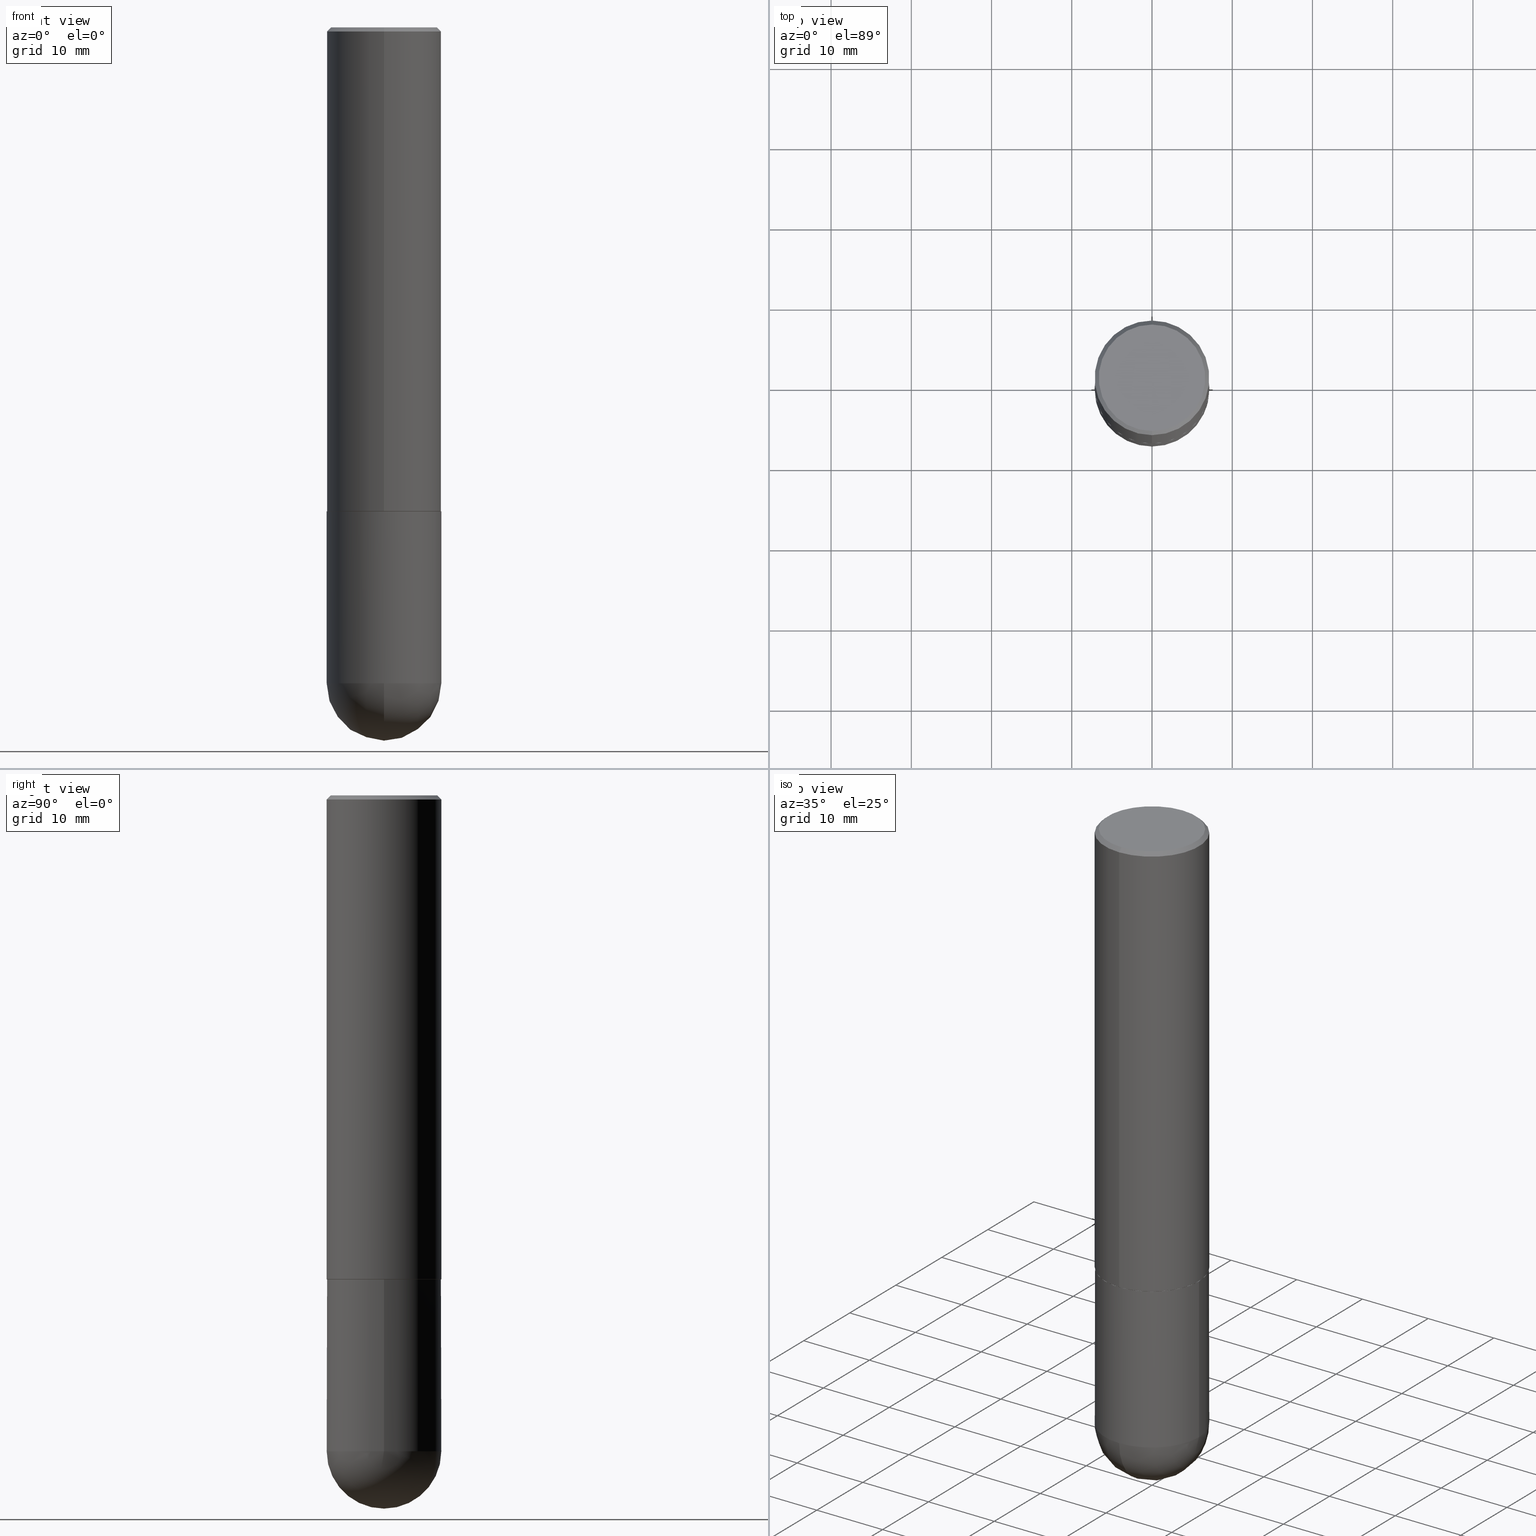
[diagram: canonical four-view strip — front | top / right | iso, engineering-drawing reading convention]
A machine part, canonical four-view strip (front | top / right | iso — engineering-drawing reading convention). The complete STEP part file that produces these views, byte-faithful:
ISO-10303-21;
HEADER;
FILE_DESCRIPTION (( 'STEP AP203' ),
    '1' );
FILE_NAME ('30566.STEP',
    '2024-02-21T16:40:18',
    ( '' ),
    ( '' ),
    'SwSTEP 2.0',
    'SolidWorks 2023',
    '' );
FILE_SCHEMA (( 'CONFIG_CONTROL_DESIGN' ));
ENDSEC;

DATA;
#1 = PERSON_AND_ORGANIZATION_ROLE ( 'creator' ) ;
#2 = CARTESIAN_POINT ( 'NONE',  ( 1.998401444325282167E-15, 0.2812500000000001110, -9.819798812686895501E-16 ) ) ;
#3 = EDGE_CURVE ( 'NONE', #22, #112, #256, .T. ) ;
#4 = CARTESIAN_POINT ( 'NONE',  ( -1.956975290421518122E-15, -0.2802500000000083258, -2.374999999999998668 ) ) ;
#5 = EDGE_CURVE ( 'NONE', #404, #340, #375, .T. ) ;
#6 = DIRECTION ( 'NONE',  ( 2.445466932345140310E-29, -3.491484022288672597E-15, -1.000000000000000000 ) ) ;
#7 = CC_DESIGN_PERSON_AND_ORGANIZATION_ASSIGNMENT ( #219, #280, ( #190 ) ) ;
#8 = CIRCLE ( 'NONE', #305, 0.2612499999999998712 ) ;
#9 = AXIS2_PLACEMENT_3D ( 'NONE', #44, #387, #258 ) ;
#10 = LINE ( 'NONE', #225, #230 ) ;
#11 = FACE_OUTER_BOUND ( 'NONE', #20, .T. ) ;
#12 = AXIS2_PLACEMENT_3D ( 'NONE', #382, #92, #224 ) ;
#13 = AXIS2_PLACEMENT_3D ( 'NONE', #359, #51, #406 ) ;
#14 = EDGE_LOOP ( 'NONE', ( #297, #274, #179, #370, #148 ) ) ;
#15 =( CONVERSION_BASED_UNIT ( 'INCH', #233 ) LENGTH_UNIT ( ) NAMED_UNIT ( #191 ) );
#16 = EDGE_CURVE ( 'NONE', #57, #115, #314, .T. ) ;
#17 = ORIENTED_EDGE ( 'NONE', *, *, #216, .F. ) ;
#18 = DIRECTION ( 'NONE',  ( -2.445466932345140310E-29, 3.491484022288672597E-15, 1.000000000000000000 ) ) ;
#19 = CALENDAR_DATE ( 2024, 21, 2 ) ;
#20 = EDGE_LOOP ( 'NONE', ( #184, #263 ) ) ;
#21 = DIRECTION ( 'NONE',  ( -6.982962677686265922E-15, -1.000000000000000000, 3.491484022288672992E-15 ) ) ;
#22 = VERTEX_POINT ( 'NONE', #66 ) ;
#23 = AXIS2_PLACEMENT_3D ( 'NONE', #364, #277, #269 ) ;
#24 = CYLINDRICAL_SURFACE ( 'NONE', #13, 0.2812500000000000555 ) ;
#25 = CYLINDRICAL_SURFACE ( 'NONE', #200, 0.2812500000000001110 ) ;
#26 = EDGE_CURVE ( 'NONE', #115, #241, #134, .T. ) ;
#27 = DIRECTION ( 'NONE',  ( -2.445466932345140310E-29, 3.491484022288672597E-15, 1.000000000000000000 ) ) ;
#28 = APPROVAL_ROLE ( '' ) ;
#29 = FACE_OUTER_BOUND ( 'NONE', #273, .T. ) ;
#30 = APPROVAL ( #317, 'UNSPECIFIED' ) ;
#31 = COORDINATED_UNIVERSAL_TIME_OFFSET ( 5, 0, .BEHIND. ) ;
#32 = DIRECTION ( 'NONE',  ( 1.000000000000000000, -6.982962677686268288E-15, 0.000000000000000000 ) ) ;
#33 = CLOSED_SHELL ( 'NONE', ( #125, #96, #167, #252, #45, #302, #363, #343 ) ) ;
#34 = VECTOR ( 'NONE', #186, 39.37007874015748143 ) ;
#35 = ADVANCED_FACE ( 'NONE', ( #374 ), #157, .T. ) ;
#36 = APPROVAL_DATE_TIME ( #408, #30 ) ;
#37 = CARTESIAN_POINT ( 'NONE',  ( -1.956975290421518122E-15, -0.2802500000000083258, -2.374999999999998668 ) ) ;
#38 = CARTESIAN_POINT ( 'NONE',  ( -1.998401444325206042E-15, -0.2812500000000116573, -3.218749999999998668 ) ) ;
#39 = PERSON_AND_ORGANIZATION ( #67, #362 ) ;
#40 = CARTESIAN_POINT ( 'NONE',  ( 5.807983964319707676E-29, -8.292274552935595299E-15, -2.374999999999999556 ) ) ;
#41 = APPROVAL_PERSON_ORGANIZATION ( #391, #379, #75 ) ;
#42 = CARTESIAN_POINT ( 'NONE',  ( 4.890933864690296280E-31, -6.982968044577367529E-17, -0.02000000000000006287 ) ) ;
#43 = CC_DESIGN_PERSON_AND_ORGANIZATION_ASSIGNMENT ( #39, #326, ( #334 ) ) ;
#44 = CARTESIAN_POINT ( 'NONE',  ( 7.540232941994521053E-29, -1.171238792754142562E-14, -3.218749999999999556 ) ) ;
#45 = ADVANCED_FACE ( 'NONE', ( #29 ), #25, .T. ) ;
#46 = ORIENTED_EDGE ( 'NONE', *, *, #78, .T. ) ;
#47 = EDGE_CURVE ( 'NONE', #112, #340, #284, .T. ) ;
#48 = PLANE ( 'NONE',  #183 ) ;
#49 = AXIS2_PLACEMENT_3D ( 'NONE', #310, #18, #142 ) ;
#50 = ORIENTED_EDGE ( 'NONE', *, *, #207, .F. ) ;
#51 = DIRECTION ( 'NONE',  ( -2.445468806185136597E-29, 3.491481338843145583E-15, 1.000000000000000000 ) ) ;
#52 = DATE_AND_TIME ( #77, #392 ) ;
#53 = ORIENTED_EDGE ( 'NONE', *, *, #102, .F. ) ;
#54 = CARTESIAN_POINT ( 'NONE',  ( -1.963958253099263301E-15, -0.2812500000000001110, 9.819798812686895501E-16 ) ) ;
#55 = EDGE_LOOP ( 'NONE', ( #335, #232, #88, #308 ) ) ;
#56 = DIRECTION ( 'NONE',  ( -2.445466932345139750E-29, 3.491484022288672992E-15, 1.000000000000000000 ) ) ;
#57 = VERTEX_POINT ( 'NONE', #193 ) ;
#58 =( GEOMETRIC_REPRESENTATION_CONTEXT ( 3 ) GLOBAL_UNCERTAINTY_ASSIGNED_CONTEXT ( ( #285 ) ) GLOBAL_UNIT_ASSIGNED_CONTEXT ( ( #15, #304, #290 ) ) REPRESENTATION_CONTEXT ( 'NONE', 'WORKASPACE' ) );
#59 = DIRECTION ( 'NONE',  ( 1.000000000000000000, -6.982962677686269866E-15, 0.000000000000000000 ) ) ;
#60 = DATE_AND_TIME ( #344, #410 ) ;
#61 = CARTESIAN_POINT ( 'NONE',  ( 1.963958253099262512E-15, 0.2812499999999998890, -0.02000000000000104472 ) ) ;
#62 = CARTESIAN_POINT ( 'NONE',  ( 8.240046819675677659E-29, -1.267714545847805119E-14, -3.500000000000000000 ) ) ;
#63 = DIRECTION ( 'NONE',  ( -2.445466932345140310E-29, 3.491484022288672597E-15, 1.000000000000000000 ) ) ;
#64 = LOCAL_TIME ( 11, 40, 18.00000000000000000, #202 ) ;
#65 = CARTESIAN_POINT ( 'NONE',  ( 0.000000000000000000, 0.000000000000000000, 0.000000000000000000 ) ) ;
#66 = CARTESIAN_POINT ( 'NONE',  ( -1.963958253099205714E-15, -0.2812500000000085487, -2.373999999999998334 ) ) ;
#67 = PERSON ( 'UNSPECIFIED', 'UNSPECIFIED', 'UNSPECIFIED', ('UNSPECIFIED'), ('UNSPECIFIED'), ('UNSPECIFIED') ) ;
#68 = DIRECTION ( 'NONE',  ( -2.445466932345140310E-29, 3.491484022288672597E-15, 1.000000000000000000 ) ) ;
#69 = CONICAL_SURFACE ( 'NONE', #401, 0.2802499999999999991, 0.7853981633973970977 ) ;
#70 = DIRECTION ( 'NONE',  ( 6.982962677686266711E-15, 1.000000000000000000, -3.490694658571003593E-15 ) ) ;
#71 = CARTESIAN_POINT ( 'NONE',  ( 0.2812500000000000000, -1.025622643285173184E-14, -2.374999999999999556 ) ) ;
#72 = MANIFOLD_SOLID_BREP ( 'Body-Move/Copy2[2]', #33 ) ;
#73 = CC_DESIGN_DATE_AND_TIME_ASSIGNMENT ( #144, #327, ( #289 ) ) ;
#74 = AXIS2_PLACEMENT_3D ( 'NONE', #42, #6, #70 ) ;
#75 = APPROVAL_ROLE ( '' ) ;
#76 = VERTEX_POINT ( 'NONE', #38 ) ;
#77 = CALENDAR_DATE ( 2024, 21, 2 ) ;
#78 = EDGE_CURVE ( 'NONE', #361, #328, #8, .T. ) ;
#79 = VERTEX_POINT ( 'NONE', #4 ) ;
#80 = ORIENTED_EDGE ( 'NONE', *, *, #216, .T. ) ;
#81 = CARTESIAN_POINT ( 'NONE',  ( -0.2812500000000000555, 1.998401444325282167E-15, -1.383450494134192269E-29 ) ) ;
#82 = AXIS2_PLACEMENT_3D ( 'NONE', #99, #349, #222 ) ;
#83 = AXIS2_PLACEMENT_3D ( 'NONE', #108, #166, #254 ) ;
#84 = PERSON_AND_ORGANIZATION ( #67, #362 ) ;
#85 = VERTEX_POINT ( 'NONE', #62 ) ;
#86 = CARTESIAN_POINT ( 'NONE',  ( -1.860910081895526737E-15, -0.2612499999999998712, 9.889841266948666649E-16 ) ) ;
#87 = ORIENTED_EDGE ( 'NONE', *, *, #110, .F. ) ;
#88 = ORIENTED_EDGE ( 'NONE', *, *, #5, .T. ) ;
#89 = EDGE_CURVE ( 'NONE', #85, #115, #236, .T. ) ;
#90 = ORIENTED_EDGE ( 'NONE', *, *, #259, .T. ) ;
#91 = DIRECTION ( 'NONE',  ( 6.982962677686265922E-15, 1.000000000000000000, -3.885294924322502955E-15 ) ) ;
#92 = DIRECTION ( 'NONE',  ( -2.445468806185136597E-29, 3.491481338843145583E-15, 1.000000000000000000 ) ) ;
#93 = CC_DESIGN_APPROVAL ( #379, ( #190 ) ) ;
#94 = DIRECTION ( 'NONE',  ( -2.445466932345140310E-29, 3.491484022288672597E-15, 1.000000000000000000 ) ) ;
#95 = DIRECTION ( 'NONE',  ( 1.000000000000000000, -6.982962677686268288E-15, 0.000000000000000000 ) ) ;
#96 = ADVANCED_FACE ( 'NONE', ( #409 ), #253, .T. ) ;
#97 = DATE_TIME_ROLE ( 'classification_date' ) ;
#98 = DIRECTION ( 'NONE',  ( 4.937700262164541731E-15, 0.7071067811865442421, -0.7071067811865507924 ) ) ;
#99 = CARTESIAN_POINT ( 'NONE',  ( 4.890933864690296280E-31, -6.982968044577367529E-17, -0.02000000000000006287 ) ) ;
#100 = VECTOR ( 'NONE', #127, 39.37007874015748143 ) ;
#101 = DIRECTION ( 'NONE',  ( -4.937700262164294818E-15, -0.7071067811865088260, 0.7071067811865862085 ) ) ;
#102 = EDGE_CURVE ( 'NONE', #79, #22, #346, .T. ) ;
#103 = SPHERICAL_SURFACE ( 'NONE', #9, 0.2812500000000003331 ) ;
#104 = CLOSED_SHELL ( 'NONE', ( #337, #373, #198, #178, #35 ) ) ;
#105 = CIRCLE ( 'NONE', #49, 0.2812500000000002220 ) ;
#106 = EDGE_CURVE ( 'NONE', #241, #76, #294, .T. ) ;
#107 = CARTESIAN_POINT ( 'NONE',  ( 1.994848730646540039E-15, 0.2802499999999917280, -2.375000000000000888 ) ) ;
#108 = CARTESIAN_POINT ( 'NONE',  ( 5.807983964319707676E-29, -8.292274552935595299E-15, -2.374999999999999556 ) ) ;
#109 = CIRCLE ( 'NONE', #306, 0.2812500000000000000 ) ;
#110 = EDGE_CURVE ( 'NONE', #76, #57, #351, .T. ) ;
#111 = AXIS2_PLACEMENT_3D ( 'NONE', #40, #68, #196 ) ;
#112 = VERTEX_POINT ( 'NONE', #218 ) ;
#113 = ORIENTED_EDGE ( 'NONE', *, *, #171, .F. ) ;
#114 = DIRECTION ( 'NONE',  ( -2.445468806185136877E-29, 3.491481338843145188E-15, 1.000000000000000000 ) ) ;
#115 = VERTEX_POINT ( 'NONE', #407 ) ;
#116 = CARTESIAN_POINT ( 'NONE',  ( 0.2812500000000000555, -1.963958253099262907E-15, 1.371424718192607012E-29 ) ) ;
#117 = LOCAL_TIME ( 11, 40, 18.00000000000000000, #381 ) ;
#118 = EDGE_LOOP ( 'NONE', ( #206, #80, #403, #238 ) ) ;
#119 = CARTESIAN_POINT ( 'NONE',  ( -1.929515061873242463E-15, -0.2812500000000000555, -0.01999999999999908101 ) ) ;
#120 = ORIENTED_EDGE ( 'NONE', *, *, #5, .F. ) ;
#121 = ORIENTED_EDGE ( 'NONE', *, *, #3, .T. ) ;
#122 = CARTESIAN_POINT ( 'NONE',  ( 5.807988414689698296E-29, -8.292268179752468540E-15, -2.374999999999999556 ) ) ;
#123 = CC_DESIGN_PERSON_AND_ORGANIZATION_ASSIGNMENT ( #170, #261, ( #289 ) ) ;
#124 = FACE_OUTER_BOUND ( 'NONE', #143, .T. ) ;
#125 = ADVANCED_FACE ( 'NONE', ( #124 ), #355, .T. ) ;
#126 = AXIS2_PLACEMENT_3D ( 'NONE', #250, #278, #131 ) ;
#127 = DIRECTION ( 'NONE',  ( -2.445466932345140310E-29, 3.491484022288672992E-15, 1.000000000000000000 ) ) ;
#128 = AXIS2_PLACEMENT_3D ( 'NONE', #341, #27, #235 ) ;
#129 = CARTESIAN_POINT ( 'NONE',  ( 0.000000000000000000, 0.000000000000000000, 0.000000000000000000 ) ) ;
#130 = DIRECTION ( 'NONE',  ( 6.982962677686266711E-15, 1.000000000000000000, -3.490694658571003593E-15 ) ) ;
#131 = DIRECTION ( 'NONE',  ( 6.982962677686265133E-15, 1.000000000000000000, 0.000000000000000000 ) ) ;
#132 = VECTOR ( 'NONE', #98, 39.37007874015748143 ) ;
#133 = VECTOR ( 'NONE', #244, 39.37007874015748143 ) ;
#134 = CIRCLE ( 'NONE', #188, 0.2812500000000000555 ) ;
#135 = FACE_OUTER_BOUND ( 'NONE', #266, .T. ) ;
#136 = ORIENTED_EDGE ( 'NONE', *, *, #47, .F. ) ;
#137 = AXIS2_PLACEMENT_3D ( 'NONE', #175, #295, #251 ) ;
#138 = AXIS2_PLACEMENT_3D ( 'NONE', #412, #63, #243 ) ;
#139 = ORIENTED_EDGE ( 'NONE', *, *, #145, .T. ) ;
#140 = COORDINATED_UNIVERSAL_TIME_OFFSET ( 5, 0, .BEHIND. ) ;
#141 = ORIENTED_EDGE ( 'NONE', *, *, #259, .F. ) ;
#142 = DIRECTION ( 'NONE',  ( -6.982962677686265133E-15, -1.000000000000000000, 3.885294924322504533E-15 ) ) ;
#143 = EDGE_LOOP ( 'NONE', ( #146, #367, #303, #53 ) ) ;
#144 = DATE_AND_TIME ( #19, #332 ) ;
#145 = EDGE_CURVE ( 'NONE', #328, #340, #217, .T. ) ;
#146 = ORIENTED_EDGE ( 'NONE', *, *, #171, .T. ) ;
#147 = FACE_OUTER_BOUND ( 'NONE', #118, .T. ) ;
#148 = ORIENTED_EDGE ( 'NONE', *, *, #16, .T. ) ;
#149 = AXIS2_PLACEMENT_3D ( 'NONE', #283, #153, #95 ) ;
#150 = AXIS2_PLACEMENT_3D ( 'NONE', #279, #271, #402 ) ;
#151 = ORIENTED_EDGE ( 'NONE', *, *, #312, .T. ) ;
#152 = CARTESIAN_POINT ( 'NONE',  ( 5.807983964319707676E-29, -8.292274552935595299E-15, -2.374999999999999556 ) ) ;
#153 = DIRECTION ( 'NONE',  ( -2.445468806185136597E-29, 3.491481338843145583E-15, 1.000000000000000000 ) ) ;
#154 = FACE_OUTER_BOUND ( 'NONE', #210, .T. ) ;
#155 = EDGE_CURVE ( 'NONE', #361, #404, #189, .T. ) ;
#156 = PERSON_AND_ORGANIZATION ( #67, #362 ) ;
#157 = CYLINDRICAL_SURFACE ( 'NONE', #245, 0.2812500000000000555 ) ;
#158 = PERSON_AND_ORGANIZATION ( #67, #362 ) ;
#159 = DIRECTION ( 'NONE',  ( -6.982962677686265133E-15, -1.000000000000000000, 3.491484022288672597E-15 ) ) ;
#160 = CIRCLE ( 'NONE', #128, 0.2812499999999999445 ) ;
#161 = CARTESIAN_POINT ( 'NONE',  ( 7.871352719908407300E-29, -1.123820555940137375E-14, -3.218749999999999556 ) ) ;
#162 = DIRECTION ( 'NONE',  ( 1.000000000000000000, 0.000000000000000000, 0.000000000000000000 ) ) ;
#163 = DIRECTION ( 'NONE',  ( -6.982962677686266711E-15, -1.000000000000000000, 3.491484022288672597E-15 ) ) ;
#164 = DESIGN_CONTEXT ( 'detailed design', #386, 'design' ) ;
#165 = APPROVAL_PERSON_ORGANIZATION ( #84, #168, #301 ) ;
#166 = DIRECTION ( 'NONE',  ( -2.445466932345140310E-29, 3.491484022288672597E-15, 1.000000000000000000 ) ) ;
#167 = ADVANCED_FACE ( 'NONE', ( #311 ), #223, .T. ) ;
#168 = APPROVAL ( #292, 'UNSPECIFIED' ) ;
#169 = AXIS2_PLACEMENT_3D ( 'NONE', #228, #350, #322 ) ;
#170 = PERSON_AND_ORGANIZATION ( #67, #362 ) ;
#171 = EDGE_CURVE ( 'NONE', #79, #209, #257, .T. ) ;
#172 = ORIENTED_EDGE ( 'NONE', *, *, #291, .T. ) ;
#173 = PLANE ( 'NONE',  #324 ) ;
#174 = AXIS2_PLACEMENT_3D ( 'NONE', #267, #336, #91 ) ;
#175 = CARTESIAN_POINT ( 'NONE',  ( 5.805538497387361922E-29, -8.288783068913306238E-15, -2.373999999999999222 ) ) ;
#176 = APPLICATION_CONTEXT ( 'configuration controlled 3d designs of mechanical parts and assemblies' ) ;
#177 = DIRECTION ( 'NONE',  ( -2.445468806185136597E-29, 3.491481338843145583E-15, 1.000000000000000000 ) ) ;
#178 = ADVANCED_FACE ( 'NONE', ( #11 ), #227, .F. ) ;
#179 = ORIENTED_EDGE ( 'NONE', *, *, #388, .F. ) ;
#180 = DIRECTION ( 'NONE',  ( -2.445466932345140310E-29, 3.491484022288672992E-15, 1.000000000000000000 ) ) ;
#181 = ORIENTED_EDGE ( 'NONE', *, *, #106, .T. ) ;
#182 = CARTESIAN_POINT ( 'NONE',  ( 5.807983964319707676E-29, -8.292274552935595299E-15, -2.374999999999999556 ) ) ;
#183 = AXIS2_PLACEMENT_3D ( 'NONE', #372, #296, #185 ) ;
#184 = ORIENTED_EDGE ( 'NONE', *, *, #388, .T. ) ;
#185 = DIRECTION ( 'NONE',  ( 6.982962677686265922E-15, 1.000000000000000000, -3.491484022288672992E-15 ) ) ;
#186 = DIRECTION ( 'NONE',  ( -4.851104656540957964E-15, -0.7071067811865491270, -0.7071067811865459074 ) ) ;
#187 = CARTESIAN_POINT ( 'NONE',  ( 4.890933864690296280E-31, -6.982968044577367529E-17, -0.02000000000000006287 ) ) ;
#188 = AXIS2_PLACEMENT_3D ( 'NONE', #161, #318, #348 ) ;
#189 = LINE ( 'NONE', #220, #34 ) ;
#190 = PRODUCT_DEFINITION_FORMATION_WITH_SPECIFIED_SOURCE ( 'ANY', '', #334, .NOT_KNOWN. ) ;
#191 = DIMENSIONAL_EXPONENTS ( 1.000000000000000000, 0.000000000000000000, 0.000000000000000000, 0.000000000000000000, 0.000000000000000000, 0.000000000000000000, 0.000000000000000000 ) ;
#192 = DATE_AND_TIME ( #378, #64 ) ;
#193 = CARTESIAN_POINT ( 'NONE',  ( 0.2812500000000000555, -1.172919512267618602E-14, -3.218749999999999556 ) ) ;
#194 = CC_DESIGN_PERSON_AND_ORGANIZATION_ASSIGNMENT ( #215, #1, ( #190 ) ) ;
#195 = DIRECTION ( 'NONE',  ( -6.982962677686266711E-15, -1.000000000000000000, 3.491484022288672597E-15 ) ) ;
#196 = DIRECTION ( 'NONE',  ( -6.982962677686265922E-15, -1.000000000000000000, 3.899158599342391639E-15 ) ) ;
#197 = CONICAL_SURFACE ( 'NONE', #74, 0.2812499999999999445, 0.7853981633974471688 ) ;
#198 = ADVANCED_FACE ( 'NONE', ( #135 ), #103, .T. ) ;
#199 = CARTESIAN_POINT ( 'NONE',  ( -0.2812500000000000555, -7.766835425251639371E-15, -3.218749999999999556 ) ) ;
#200 = AXIS2_PLACEMENT_3D ( 'NONE', #65, #281, #163 ) ;
#201 = VECTOR ( 'NONE', #180, 39.37007874015748143 ) ;
#202 = COORDINATED_UNIVERSAL_TIME_OFFSET ( 5, 0, .BEHIND. ) ;
#203 = CC_DESIGN_PERSON_AND_ORGANIZATION_ASSIGNMENT ( #156, #249, ( #352 ) ) ;
#204 = ORIENTED_EDGE ( 'NONE', *, *, #16, .F. ) ;
#205 = APPROVAL_DATE_TIME ( #52, #168 ) ;
#206 = ORIENTED_EDGE ( 'NONE', *, *, #89, .F. ) ;
#207 = EDGE_CURVE ( 'NONE', #209, #112, #10, .T. ) ;
#208 = SPHERICAL_SURFACE ( 'NONE', #174, 0.2812500000000003331 ) ;
#209 = VERTEX_POINT ( 'NONE', #107 ) ;
#210 = EDGE_LOOP ( 'NONE', ( #113, #231 ) ) ;
#211 = VERTEX_POINT ( 'NONE', #71 ) ;
#212 = SECURITY_CLASSIFICATION_LEVEL ( 'unclassified' ) ;
#213 = ORIENTED_EDGE ( 'NONE', *, *, #102, .T. ) ;
#214 = LINE ( 'NONE', #54, #201 ) ;
#215 = PERSON_AND_ORGANIZATION ( #67, #362 ) ;
#216 = EDGE_CURVE ( 'NONE', #85, #76, #226, .T. ) ;
#217 = LINE ( 'NONE', #61, #132 ) ;
#218 = CARTESIAN_POINT ( 'NONE',  ( 1.998401444325312144E-15, 0.2812499999999919509, -2.374000000000000554 ) ) ;
#219 = PERSON_AND_ORGANIZATION ( #67, #362 ) ;
#220 = CARTESIAN_POINT ( 'NONE',  ( -1.929515061873242463E-15, -0.2812500000000000555, -0.01999999999999908101 ) ) ;
#221 = EDGE_CURVE ( 'NONE', #209, #79, #389, .T. ) ;
#222 = DIRECTION ( 'NONE',  ( -6.982962677686266711E-15, -1.000000000000000000, 3.490694658571003593E-15 ) ) ;
#223 = CONICAL_SURFACE ( 'NONE', #377, 0.2812499999999999445, 0.7853981633974471688 ) ;
#224 = DIRECTION ( 'NONE',  ( 1.000000000000000000, -6.982962677686268288E-15, 0.000000000000000000 ) ) ;
#225 = CARTESIAN_POINT ( 'NONE',  ( 1.991296016967738351E-15, 0.2802499999999917280, -2.375000000000000888 ) ) ;
#226 = CIRCLE ( 'NONE', #272, 0.2812500000000003331 ) ;
#227 = PLANE ( 'NONE',  #169 ) ;
#228 = CARTESIAN_POINT ( 'NONE',  ( 1.963958253099320494E-15, 0.2812499999999917288, -2.375000000000000444 ) ) ;
#229 = APPROVAL_STATUS ( 'not_yet_approved' ) ;
#230 = VECTOR ( 'NONE', #390, 39.37007874015748854 ) ;
#231 = ORIENTED_EDGE ( 'NONE', *, *, #221, .F. ) ;
#232 = ORIENTED_EDGE ( 'NONE', *, *, #155, .T. ) ;
#233 = LENGTH_MEASURE_WITH_UNIT ( LENGTH_MEASURE( 0.02539999999999999897 ), #369 );
#234 = EDGE_LOOP ( 'NONE', ( #121, #357, #120, #393 ) ) ;
#235 = DIRECTION ( 'NONE',  ( -6.982962677686266711E-15, -1.000000000000000000, 3.490694658571003593E-15 ) ) ;
#236 = CIRCLE ( 'NONE', #126, 0.2812500000000003331 ) ;
#237 = AXIS2_PLACEMENT_3D ( 'NONE', #275, #405, #162 ) ;
#238 = ORIENTED_EDGE ( 'NONE', *, *, #26, .F. ) ;
#239 = LINE ( 'NONE', #81, #384 ) ;
#240 = ORIENTED_EDGE ( 'NONE', *, *, #276, .F. ) ;
#241 = VERTEX_POINT ( 'NONE', #199 ) ;
#242 = FACE_OUTER_BOUND ( 'NONE', #358, .T. ) ;
#243 = DIRECTION ( 'NONE',  ( -6.982962677686265922E-15, -1.000000000000000000, 3.899158599342391639E-15 ) ) ;
#244 = DIRECTION ( 'NONE',  ( -2.445468806185136877E-29, 3.491481338843145188E-15, 1.000000000000000000 ) ) ;
#245 = AXIS2_PLACEMENT_3D ( 'NONE', #129, #342, #247 ) ;
#246 = CC_DESIGN_APPROVAL ( #168, ( #289 ) ) ;
#247 = DIRECTION ( 'NONE',  ( 1.000000000000000000, -6.982962677686266711E-15, 4.876176775795935232E-29 ) ) ;
#248 = MECHANICAL_CONTEXT ( 'NONE', #176, 'mechanical' ) ;
#249 = PERSON_AND_ORGANIZATION_ROLE ( 'classification_officer' ) ;
#250 = CARTESIAN_POINT ( 'NONE',  ( 7.540232941994521053E-29, -1.171238792754142562E-14, -3.218749999999999556 ) ) ;
#251 = DIRECTION ( 'NONE',  ( -6.982962677686265133E-15, -1.000000000000000000, 3.885294924322504533E-15 ) ) ;
#252 = ADVANCED_FACE ( 'NONE', ( #320 ), #197, .T. ) ;
#253 = CYLINDRICAL_SURFACE ( 'NONE', #287, 0.2812500000000001110 ) ;
#254 = DIRECTION ( 'NONE',  ( -6.982962677686265922E-15, -1.000000000000000000, 3.899158599342391639E-15 ) ) ;
#255 = PRODUCT_RELATED_PRODUCT_CATEGORY ( 'detail', '', ( #334 ) ) ;
#256 = CIRCLE ( 'NONE', #137, 0.2812500000000002220 ) ;
#257 = CIRCLE ( 'NONE', #83, 0.2802499999999999991 ) ;
#258 = DIRECTION ( 'NONE',  ( 6.982962677686265922E-15, 1.000000000000000000, -3.885294924322502955E-15 ) ) ;
#259 = EDGE_CURVE ( 'NONE', #112, #22, #105, .T. ) ;
#260 = CARTESIAN_POINT ( 'NONE',  ( 7.540232941994521053E-29, -1.171238792754142562E-14, -3.218749999999999556 ) ) ;
#261 = PERSON_AND_ORGANIZATION_ROLE ( 'creator' ) ;
#262 = ORIENTED_EDGE ( 'NONE', *, *, #265, .F. ) ;
#263 = ORIENTED_EDGE ( 'NONE', *, *, #265, .T. ) ;
#264 = CIRCLE ( 'NONE', #23, 0.2612499999999998712 ) ;
#265 = EDGE_CURVE ( 'NONE', #397, #211, #109, .T. ) ;
#266 = EDGE_LOOP ( 'NONE', ( #17, #394, #204, #87 ) ) ;
#267 = CARTESIAN_POINT ( 'NONE',  ( 7.540232941994521053E-29, -1.171238792754142562E-14, -3.218749999999999556 ) ) ;
#268 = EDGE_LOOP ( 'NONE', ( #331, #240, #139, #151 ) ) ;
#269 = DIRECTION ( 'NONE',  ( -6.982962677686265133E-15, -1.000000000000000000, 3.491484022288672597E-15 ) ) ;
#270 = ORIENTED_EDGE ( 'NONE', *, *, #286, .F. ) ;
#271 = DIRECTION ( 'NONE',  ( -2.445468806185136597E-29, 3.491481338843145583E-15, 1.000000000000000000 ) ) ;
#272 = AXIS2_PLACEMENT_3D ( 'NONE', #260, #354, #319 ) ;
#273 = EDGE_LOOP ( 'NONE', ( #136, #90, #299, #371 ) ) ;
#274 = ORIENTED_EDGE ( 'NONE', *, *, #286, .T. ) ;
#275 = CARTESIAN_POINT ( 'NONE',  ( 0.000000000000000000, 0.000000000000000000, 0.000000000000000000 ) ) ;
#276 = EDGE_CURVE ( 'NONE', #328, #361, #264, .T. ) ;
#277 = DIRECTION ( 'NONE',  ( -2.445466932345140310E-29, 3.491484022288672597E-15, 1.000000000000000000 ) ) ;
#278 = DIRECTION ( 'NONE',  ( 1.000000000000000000, -6.982962677686265922E-15, 4.883557194083112340E-29 ) ) ;
#279 = CARTESIAN_POINT ( 'NONE',  ( 5.807988414689698296E-29, -8.292268179752468540E-15, -2.374999999999999556 ) ) ;
#280 = PERSON_AND_ORGANIZATION_ROLE ( 'design_supplier' ) ;
#281 = DIRECTION ( 'NONE',  ( -2.445466932345140310E-29, 3.491484022288672597E-15, 1.000000000000000000 ) ) ;
#282 = DIRECTION ( 'NONE',  ( -2.445466932345140310E-29, 3.491484022288672597E-15, 1.000000000000000000 ) ) ;
#283 = CARTESIAN_POINT ( 'NONE',  ( 7.871352719908407300E-29, -1.123820555940137375E-14, -3.218749999999999556 ) ) ;
#284 = LINE ( 'NONE', #2, #100 ) ;
#285 = UNCERTAINTY_MEASURE_WITH_UNIT (LENGTH_MEASURE( 1.000000000000000082E-05 ), #15, 'distance_accuracy_value', 'NONE');
#286 = EDGE_CURVE ( 'NONE', #241, #397, #239, .T. ) ;
#287 = AXIS2_PLACEMENT_3D ( 'NONE', #380, #385, #195 ) ;
#288 = APPROVAL_PERSON_ORGANIZATION ( #158, #30, #28 ) ;
#289 = PRODUCT_DEFINITION ( 'UNKNOWN', '', #190, #164 ) ;
#290 =( NAMED_UNIT ( * ) SI_UNIT ( $, .STERADIAN. ) SOLID_ANGLE_UNIT ( ) );
#291 = EDGE_CURVE ( 'NONE', #57, #211, #330, .T. ) ;
#292 = APPROVAL_STATUS ( 'not_yet_approved' ) ;
#293 = EDGE_LOOP ( 'NONE', ( #270, #181, #399, #172, #262 ) ) ;
#294 = CIRCLE ( 'NONE', #12, 0.2812500000000000555 ) ;
#295 = DIRECTION ( 'NONE',  ( -2.445466932345140310E-29, 3.491484022288672597E-15, 1.000000000000000000 ) ) ;
#296 = DIRECTION ( 'NONE',  ( 2.445466932345139750E-29, -3.491484022288672992E-15, -1.000000000000000000 ) ) ;
#297 = ORIENTED_EDGE ( 'NONE', *, *, #26, .T. ) ;
#298 = CARTESIAN_POINT ( 'NONE',  ( -0.2812500000000000000, -7.766835425251637793E-15, -2.374999999999999556 ) ) ;
#299 = ORIENTED_EDGE ( 'NONE', *, *, #396, .T. ) ;
#300 = PRODUCT_DEFINITION_SHAPE ( 'NONE', 'NONE',  #289 ) ;
#301 = APPROVAL_ROLE ( '' ) ;
#302 = ADVANCED_FACE ( 'NONE', ( #398 ), #69, .T. ) ;
#303 = ORIENTED_EDGE ( 'NONE', *, *, #3, .F. ) ;
#304 =( NAMED_UNIT ( * ) PLANE_ANGLE_UNIT ( ) SI_UNIT ( $, .RADIAN. ) );
#305 = AXIS2_PLACEMENT_3D ( 'NONE', #345, #282, #159 ) ;
#306 = AXIS2_PLACEMENT_3D ( 'NONE', #122, #177, #59 ) ;
#307 = CALENDAR_DATE ( 2024, 21, 2 ) ;
#308 = ORIENTED_EDGE ( 'NONE', *, *, #145, .F. ) ;
#309 = FACE_OUTER_BOUND ( 'NONE', #14, .T. ) ;
#310 = CARTESIAN_POINT ( 'NONE',  ( 5.805538497387361922E-29, -8.288783068913306238E-15, -2.373999999999999222 ) ) ;
#311 = FACE_OUTER_BOUND ( 'NONE', #55, .T. ) ;
#312 = EDGE_CURVE ( 'NONE', #340, #404, #160, .T. ) ;
#313 = DIRECTION ( 'NONE',  ( 2.445466932345140310E-29, -3.491484022288672597E-15, -1.000000000000000000 ) ) ;
#314 = CIRCLE ( 'NONE', #347, 0.2812500000000000555 ) ;
#315 = CIRCLE ( 'NONE', #150, 0.2812500000000000000 ) ;
#316 = DIRECTION ( 'NONE',  ( -2.445468806185136597E-29, 3.491481338843145583E-15, 1.000000000000000000 ) ) ;
#317 = APPROVAL_STATUS ( 'not_yet_approved' ) ;
#318 = DIRECTION ( 'NONE',  ( -2.445468806185136597E-29, 3.491481338843145583E-15, 1.000000000000000000 ) ) ;
#319 = DIRECTION ( 'NONE',  ( -7.105427357601001859E-15, -1.000000000000000000, 0.000000000000000000 ) ) ;
#320 = FACE_OUTER_BOUND ( 'NONE', #268, .T. ) ;
#321 = CC_DESIGN_APPROVAL ( #30, ( #352 ) ) ;
#322 = DIRECTION ( 'NONE',  ( -1.000000000000000000, 6.982962677686265922E-15, -4.876176775795935793E-29 ) ) ;
#323 = VECTOR ( 'NONE', #101, 39.37007874015748143 ) ;
#324 = AXIS2_PLACEMENT_3D ( 'NONE', #152, #56, #21 ) ;
#325 = CC_DESIGN_SECURITY_CLASSIFICATION ( #352, ( #190 ) ) ;
#326 = PERSON_AND_ORGANIZATION_ROLE ( 'design_owner' ) ;
#327 = DATE_TIME_ROLE ( 'creation_date' ) ;
#328 = VERTEX_POINT ( 'NONE', #395 ) ;
#329 = CC_DESIGN_DATE_AND_TIME_ASSIGNMENT ( #60, #97, ( #352 ) ) ;
#330 = LINE ( 'NONE', #116, #133 ) ;
#331 = ORIENTED_EDGE ( 'NONE', *, *, #155, .F. ) ;
#332 = LOCAL_TIME ( 11, 40, 18.00000000000000000, #140 ) ;
#333 = DIRECTION ( 'NONE',  ( -6.982962677686265922E-15, -1.000000000000000000, 3.899158599342391639E-15 ) ) ;
#334 = PRODUCT ( '30566', '30566', '', ( #248 ) ) ;
#335 = ORIENTED_EDGE ( 'NONE', *, *, #78, .F. ) ;
#336 = DIRECTION ( 'NONE',  ( -1.000000000000000000, 6.982962677686265922E-15, -4.883557194083112901E-29 ) ) ;
#337 = ADVANCED_FACE ( 'NONE', ( #309 ), #24, .T. ) ;
#338 = ORIENTED_EDGE ( 'NONE', *, *, #276, .T. ) ;
#339 = SHAPE_DEFINITION_REPRESENTATION ( #300, #366 ) ;
#340 = VERTEX_POINT ( 'NONE', #376 ) ;
#341 = CARTESIAN_POINT ( 'NONE',  ( 4.890933864690296280E-31, -6.982968044577367529E-17, -0.02000000000000006287 ) ) ;
#342 = DIRECTION ( 'NONE',  ( -2.445468806185136597E-29, 3.491481338843145583E-15, 1.000000000000000000 ) ) ;
#343 = ADVANCED_FACE ( 'NONE', ( #242 ), #48, .F. ) ;
#344 = CALENDAR_DATE ( 2024, 21, 2 ) ;
#345 = CARTESIAN_POINT ( 'NONE',  ( -1.878948250021147159E-45, 2.682644245516303250E-31, 7.683392587195133242E-17 ) ) ;
#346 = LINE ( 'NONE', #37, #323 ) ;
#347 = AXIS2_PLACEMENT_3D ( 'NONE', #383, #316, #32 ) ;
#348 = DIRECTION ( 'NONE',  ( 1.000000000000000000, -6.982962677686268288E-15, 0.000000000000000000 ) ) ;
#349 = DIRECTION ( 'NONE',  ( -2.445466932345140310E-29, 3.491484022288672597E-15, 1.000000000000000000 ) ) ;
#350 = DIRECTION ( 'NONE',  ( 2.438088387897960049E-29, -3.491481338843145188E-15, -1.000000000000000000 ) ) ;
#351 = CIRCLE ( 'NONE', #149, 0.2812500000000000555 ) ;
#352 = SECURITY_CLASSIFICATION ( '', '', #212 ) ;
#353 = MANIFOLD_SOLID_BREP ( 'Body-Move/Copy2[1]', #104 ) ;
#354 = DIRECTION ( 'NONE',  ( -1.000000000000000000, 7.105427357601001070E-15, -4.926315508542082329E-29 ) ) ;
#355 = CONICAL_SURFACE ( 'NONE', #138, 0.2802499999999999991, 0.7853981633973970977 ) ;
#356 = COORDINATED_UNIVERSAL_TIME_OFFSET ( 5, 0, .BEHIND. ) ;
#357 = ORIENTED_EDGE ( 'NONE', *, *, #47, .T. ) ;
#358 = EDGE_LOOP ( 'NONE', ( #338, #46 ) ) ;
#359 = CARTESIAN_POINT ( 'NONE',  ( 0.000000000000000000, 0.000000000000000000, 0.000000000000000000 ) ) ;
#360 = APPLICATION_PROTOCOL_DEFINITION ( 'international standard', 'config_control_design', 1994, #386 ) ;
#361 = VERTEX_POINT ( 'NONE', #86 ) ;
#362 = ORGANIZATION ( 'UNSPECIFIED', 'UNSPECIFIED', '' ) ;
#363 = ADVANCED_FACE ( 'NONE', ( #154 ), #173, .F. ) ;
#364 = CARTESIAN_POINT ( 'NONE',  ( -1.878948250021147159E-45, 2.682644245516303250E-31, 7.683392587195133242E-17 ) ) ;
#365 = ORIENTED_EDGE ( 'NONE', *, *, #221, .T. ) ;
#366 = ADVANCED_BREP_SHAPE_REPRESENTATION ( '30566', ( #353, #72, #237 ), #58 ) ;
#367 = ORIENTED_EDGE ( 'NONE', *, *, #207, .T. ) ;
#368 = APPLICATION_PROTOCOL_DEFINITION ( 'international standard', 'config_control_design', 1994, #176 ) ;
#369 =( LENGTH_UNIT ( ) NAMED_UNIT ( * ) SI_UNIT ( $, .METRE. ) );
#370 = ORIENTED_EDGE ( 'NONE', *, *, #291, .F. ) ;
#371 = ORIENTED_EDGE ( 'NONE', *, *, #312, .F. ) ;
#372 = CARTESIAN_POINT ( 'NONE',  ( 1.824298999545535916E-15, 0.2612499999999998712, -8.737332378869396355E-16 ) ) ;
#373 = ADVANCED_FACE ( 'NONE', ( #147 ), #208, .T. ) ;
#374 = FACE_OUTER_BOUND ( 'NONE', #293, .T. ) ;
#375 = CIRCLE ( 'NONE', #82, 0.2812499999999999445 ) ;
#376 = CARTESIAN_POINT ( 'NONE',  ( 1.963958253099262512E-15, 0.2812499999999998890, -0.02000000000000104472 ) ) ;
#377 = AXIS2_PLACEMENT_3D ( 'NONE', #187, #313, #130 ) ;
#378 = CALENDAR_DATE ( 2024, 21, 2 ) ;
#379 = APPROVAL ( #229, 'UNSPECIFIED' ) ;
#380 = CARTESIAN_POINT ( 'NONE',  ( 0.000000000000000000, 0.000000000000000000, 0.000000000000000000 ) ) ;
#381 = COORDINATED_UNIVERSAL_TIME_OFFSET ( 5, 0, .BEHIND. ) ;
#382 = CARTESIAN_POINT ( 'NONE',  ( 7.871352719908407300E-29, -1.123820555940137375E-14, -3.218749999999999556 ) ) ;
#383 = CARTESIAN_POINT ( 'NONE',  ( 7.871352719908407300E-29, -1.123820555940137375E-14, -3.218749999999999556 ) ) ;
#384 = VECTOR ( 'NONE', #114, 39.37007874015748143 ) ;
#385 = DIRECTION ( 'NONE',  ( -2.445466932345140310E-29, 3.491484022288672597E-15, 1.000000000000000000 ) ) ;
#386 = APPLICATION_CONTEXT ( 'configuration controlled 3d designs of mechanical parts and assemblies' ) ;
#387 = DIRECTION ( 'NONE',  ( -1.000000000000000000, 6.982962677686265922E-15, -4.883557194083112901E-29 ) ) ;
#388 = EDGE_CURVE ( 'NONE', #211, #397, #315, .T. ) ;
#389 = CIRCLE ( 'NONE', #111, 0.2802499999999999991 ) ;
#390 = DIRECTION ( 'NONE',  ( 5.024295867787803643E-15, 0.7071067811865135999, 0.7071067811865812125 ) ) ;
#391 = PERSON_AND_ORGANIZATION ( #67, #362 ) ;
#392 = LOCAL_TIME ( 11, 40, 18.00000000000000000, #356 ) ;
#393 = ORIENTED_EDGE ( 'NONE', *, *, #396, .F. ) ;
#394 = ORIENTED_EDGE ( 'NONE', *, *, #89, .T. ) ;
#395 = CARTESIAN_POINT ( 'NONE',  ( 1.894128626322399214E-15, 0.2612499999999998712, -8.353162749509640247E-16 ) ) ;
#396 = EDGE_CURVE ( 'NONE', #22, #404, #214, .T. ) ;
#397 = VERTEX_POINT ( 'NONE', #298 ) ;
#398 = FACE_OUTER_BOUND ( 'NONE', #400, .T. ) ;
#399 = ORIENTED_EDGE ( 'NONE', *, *, #110, .T. ) ;
#400 = EDGE_LOOP ( 'NONE', ( #50, #365, #213, #141 ) ) ;
#401 = AXIS2_PLACEMENT_3D ( 'NONE', #182, #94, #333 ) ;
#402 = DIRECTION ( 'NONE',  ( 1.000000000000000000, -6.982962677686269866E-15, 0.000000000000000000 ) ) ;
#403 = ORIENTED_EDGE ( 'NONE', *, *, #106, .F. ) ;
#404 = VERTEX_POINT ( 'NONE', #119 ) ;
#405 = DIRECTION ( 'NONE',  ( 0.000000000000000000, 0.000000000000000000, 1.000000000000000000 ) ) ;
#406 = DIRECTION ( 'NONE',  ( 1.000000000000000000, -6.982962677686266711E-15, 4.876176775795935232E-29 ) ) ;
#407 = CARTESIAN_POINT ( 'NONE',  ( 1.963958253099340610E-15, 0.2812499999999886757, -3.218750000000000888 ) ) ;
#408 = DATE_AND_TIME ( #307, #117 ) ;
#409 = FACE_OUTER_BOUND ( 'NONE', #234, .T. ) ;
#410 = LOCAL_TIME ( 11, 40, 18.00000000000000000, #31 ) ;
#411 = APPROVAL_DATE_TIME ( #192, #379 ) ;
#412 = CARTESIAN_POINT ( 'NONE',  ( 5.807983964319707676E-29, -8.292274552935595299E-15, -2.374999999999999556 ) ) ;
ENDSEC;
END-ISO-10303-21;
